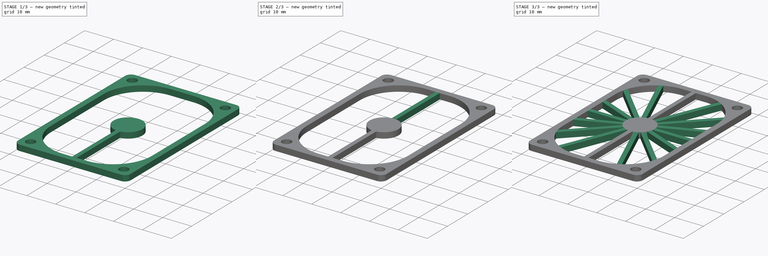
[diagram: build sequence overview — one tinted view per stage of 3, left to right]
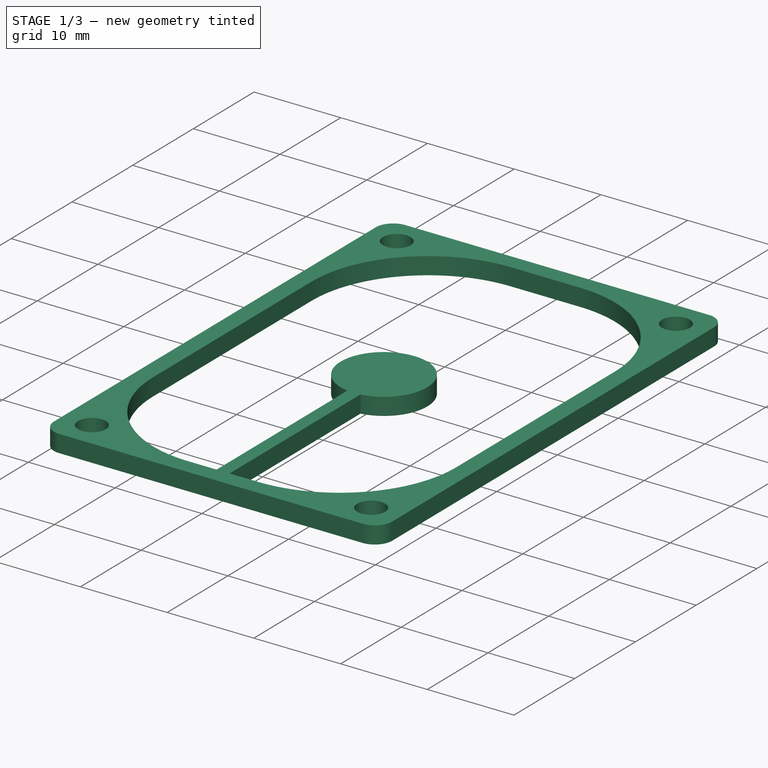
[diagram: stage 1 of 3 — iso view after this stage's code; geometry added in this stage tinted green]
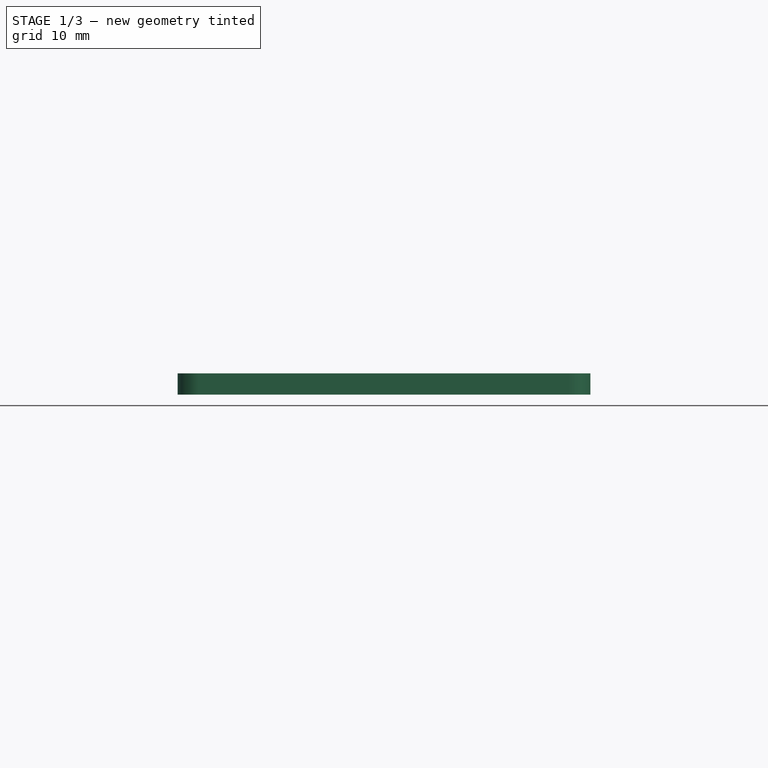
[diagram: stage 1 of 3 — front view after this stage's code; geometry added in this stage tinted green]
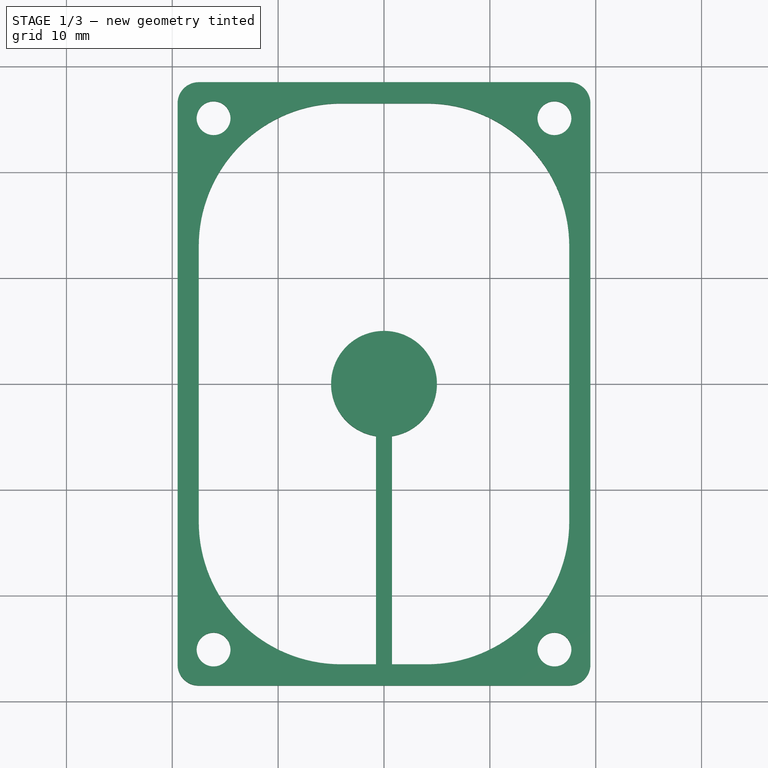
[diagram: stage 1 of 3 — top view after this stage's code; geometry added in this stage tinted green]
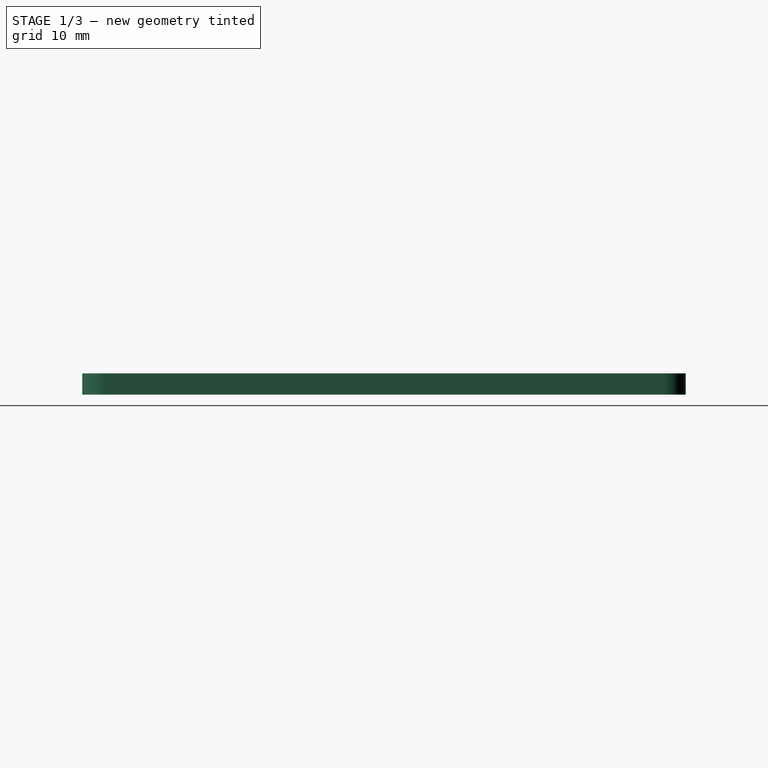
[diagram: stage 1 of 3 — right view after this stage's code; geometry added in this stage tinted green]
FCSTD DOCUMENT  (FreeCAD 0.18.3R)
Label: Laser PCB Box Lid
License: All rights reserved
LicenseURL: http://en.wikipedia.org/wiki/All_rights_reserved
objects: Sketcher::SketchObject×4, PartDesign::Pad×3, PartDesign::PolarPattern×1, PartDesign::Pocket×1, PartDesign::Body×1, Spreadsheet::Sheet×1
note: 14 computed .brp shape members not serialized (recipe doc carries the construction recipe); baked Part::Feature solids carry a one-line shape summary decoded from their .brp

FEATURE [Sketcher::SketchObject] Sketch  label="Sketch Frame"
  MapMode = 5
  Support = -> [XY_Plane]
  expr: Constraints[67] = Screws.m3d
  expr: Constraints[58] = Screws.m3D
  sketch-geometry (30):
    g0: ArcOfCircle CenterX=-17.5 CenterY=26.5 CenterZ=0 NormalX=0 NormalY=0 NormalZ=1 AngleXU=0 Radius=2 StartAngle=1.5708 EndAngle=3.14159
    g1: ArcOfCircle CenterX=17.5 CenterY=26.5 CenterZ=0 NormalX=0 NormalY=0 NormalZ=1 AngleXU=0 Radius=2 StartAngle=0 EndAngle=1.5708
    g2: ArcOfCircle CenterX=17.5 CenterY=-26.5 CenterZ=0 NormalX=0 NormalY=0 NormalZ=1 AngleXU=0 Radius=2 StartAngle=4.71239 EndAngle=6.28319
    g3: LineSegment StartX=17.5 StartY=-28.5 StartZ=0 EndX=-17.5 EndY=-28.5 EndZ=0
    g4: LineSegment StartX=-19.5 StartY=-26.5 StartZ=0 EndX=-19.5 EndY=26.5 EndZ=0
    g5: LineSegment StartX=-17.5 StartY=28.5 StartZ=0 EndX=17.5 EndY=28.5 EndZ=0
    g6: LineSegment StartX=19.5 StartY=26.5 StartZ=0 EndX=19.5 EndY=-26.5 EndZ=0
    g7: LineSegment StartX=-4.02893 StartY=26.5 StartZ=0 EndX=4.02893 EndY=26.5 EndZ=0
    g8: LineSegment StartX=17.5 StartY=13.0289 StartZ=0 EndX=17.5 EndY=-13.0289 EndZ=0
    g9: ArcOfCircle CenterX=-4.02893 CenterY=13.0289 CenterZ=0 NormalX=0 NormalY=0 NormalZ=1 AngleXU=0 Radius=13.4711 StartAngle=1.5708 EndAngle=3.14159
    g10: ArcOfCircle CenterX=4.02893 CenterY=13.0289 CenterZ=0 NormalX=0 NormalY=0 NormalZ=1 AngleXU=0 Radius=13.4711 StartAngle=1e-16 EndAngle=1.5708
    g11: ArcOfCircle CenterX=-4.02893 CenterY=-13.0289 CenterZ=0 NormalX=0 NormalY=0 NormalZ=1 AngleXU=0 Radius=13.4711 StartAngle=3.14159 EndAngle=4.71239
    g12: ArcOfCircle CenterX=4.02893 CenterY=-13.0289 CenterZ=0 NormalX=0 NormalY=0 NormalZ=1 AngleXU=0 Radius=13.4711 StartAngle=4.71239 EndAngle=6.28319
    g13: LineSegment [constr] StartX=4.02893 StartY=26.5 StartZ=0 EndX=4.02893 EndY=28.5 EndZ=0
    g14: LineSegment [constr] StartX=17.5 StartY=13.0289 StartZ=0 EndX=19.5 EndY=13.0289 EndZ=0
    g15: LineSegment [constr] StartX=-4.02893 StartY=-26.5 StartZ=0 EndX=-4.02893 EndY=-28.5 EndZ=0
    g16: LineSegment StartX=-4.02893 StartY=-26.5 StartZ=0 EndX=4.02893 EndY=-26.5 EndZ=0
    g17: LineSegment StartX=-17.5 StartY=13.0289 StartZ=0 EndX=-17.5 EndY=-13.0289 EndZ=0
    g18: ArcOfCircle CenterX=-17.5 CenterY=-26.5 CenterZ=0 NormalX=0 NormalY=0 NormalZ=1 AngleXU=0 Radius=2 StartAngle=3.14159 EndAngle=4.71239
    g19: LineSegment [constr] StartX=-17.5 StartY=13.0289 StartZ=0 EndX=-19.5 EndY=13.0289 EndZ=0
    g20: LineSegment [constr] StartX=-4.02893 StartY=26.5 StartZ=0 EndX=-4.02893 EndY=28.5 EndZ=0
    g21: LineSegment [constr] StartX=-4.02893 StartY=13.0289 StartZ=0 EndX=4.02893 EndY=-13.0289 EndZ=0
    g22: LineSegment [constr] StartX=4.02893 StartY=13.0289 StartZ=0 EndX=-4.02893 EndY=-13.0289 EndZ=0
    g23: Circle CenterX=-16.1 CenterY=25.1 CenterZ=0 NormalX=0 NormalY=0 NormalZ=1 AngleXU=0 Radius=1.6
    g24: Circle CenterX=16.1 CenterY=-25.1 CenterZ=0 NormalX=0 NormalY=0 NormalZ=1 AngleXU=0 Radius=1.6
    g25: LineSegment [constr] StartX=-14.9686 StartY=23.9686 StartZ=0 EndX=-13.5544 EndY=22.5544 EndZ=0
    g26: Circle [constr] CenterX=-16.1 CenterY=25.1 CenterZ=0 NormalX=0 NormalY=0 NormalZ=1 AngleXU=0 Radius=1.4
    g27: Circle [constr] CenterX=16.1 CenterY=-25.1 CenterZ=0 NormalX=0 NormalY=0 NormalZ=1 AngleXU=0 Radius=1.4
    g28: Circle CenterX=16.1 CenterY=25.1 CenterZ=0 NormalX=0 NormalY=0 NormalZ=1 AngleXU=0 Radius=1.6
    g29: Circle CenterX=-16.1 CenterY=-25.1 CenterZ=0 NormalX=0 NormalY=0 NormalZ=1 AngleXU=0 Radius=1.6
  constraints (79):
    c: Horizontal(g3)
    c: Vertical(g4)
    c: Horizontal(g5)
    c: Vertical(g6)
    c: Radius(g2) = 2
    c: Equal(g0,g1)
    c: Vertical(g8)
    c: Horizontal(g7)
    c: Coincident(g11,g15) = -1.5708
    c: Tangent(g12,g8) = 1.5708
    c: Tangent(g10,g8) = 1.5708
    c: Tangent(g10,g7) = 1.5708
    c: Tangent(g9,g7) = 1.5708
    c: Equal(g9,g10)
    c: Equal(g10,g11)
    c: Equal(g11,g12)
    c: Coincident(g13,g7)
    c: PointOnObject(g13,g5)
    c: Vertical(g13)
    c: Coincident(g14,g8)
    c: PointOnObject(g14,g6)
    c: Horizontal(g14)
    c: PointOnObject(g15,g3)
    c: Vertical(g15)
    c: Equal(g15,g13)
    c: Equal(g13,g14)
    c: Vertical(g17)
    c: Equal(g2,g18)
    c: Equal(g18,g0)
    c: Horizontal(g16)
    c: Tangent(g18,g4) = 1.5708
    c: Tangent(g18,g3) = 1.5708
    c: Tangent(g16,g11) = -1.5708
    c: Tangent(g6,g2) = 1.5708
    c: Tangent(g3,g2) = 1.5708
    c: Tangent(g17,g9) = -1.5708
    c: Tangent(g4,g0) = 1.5708
    c: Tangent(g5,g0) = 1.5708
    c: Tangent(g5,g1) = 1.5708
    c: Tangent(g6,g1) = 1.5708
    c: Coincident(g19,g9)
    c: PointOnObject(g19,g4)
    c: Coincident(g20,g7)
    c: Vertical(g20)
    c: Horizontal(g19)
    c: Equal(g19,g20)
    c: Equal(g20,g14)
    c: Tangent(g17,g11) = -1.5708
    c: Tangent(g16,g12) = -1.5708
    c: Coincident(g21,g9)
    c: Coincident(g21,g12)
    c: Coincident(g22,g10)
    c: Coincident(g22,g11)
    c: PointOnObject(g-1,g22)
    c: PointOnObject(g-1,g21)
    c: Distance(g15) = 2
    c: Distance(g18,g2) = 35
    c: Distance(g0,g18) = 53
    c: Diameter(g23) = 3.2
    c: PointOnObject(g25,g23)
    c: PointOnObject(g25,g9)
    c: PointOnObject(g23,g25)
    c: PointOnObject(g9,g25)
    c: Distance(g25) = 2
    c: Equal(g24,g23)
    c: Tangent(g26,g7)
    c: Tangent(g26,g17)
    c: Diameter(g26) = 2.8
    c: Coincident(g23,g26)
    c: Tangent(g27,g16)
    c: Tangent(g27,g8)
    c: Equal(g27,g26)
    c: Coincident(g24,g27)
    c: Equal(g29,g28)
    c: Equal(g28,g23)
    c: Horizontal(g23,g28)
    c: Vertical(g28,g24)
    c: Horizontal(g29,g24)
    c: Vertical(g29,g23)
FEATURE [PartDesign::Pad] Pad  label="Frame"
  Length = 2
  Length2 = 100
  Profile = -> Sketch
  Type = 0
FEATURE [Sketcher::SketchObject] Sketch001  label="Sketch Center"
  ExternalGeometry = -> [Pad]
  MapMode = 5
  Support = -> [XY_Plane]
  sketch-geometry (4):
    g0: ArcOfCircle CenterX=0 CenterY=0 CenterZ=0 NormalX=0 NormalY=0 NormalZ=1 AngleXU=0 Radius=5 StartAngle=4.86296 EndAngle=10.845
    g1: LineSegment StartX=-0.75 StartY=-4.94343 StartZ=0 EndX=-0.75 EndY=-26.5 EndZ=0
    g2: LineSegment StartX=0.75 StartY=-4.94343 StartZ=0 EndX=0.75 EndY=-26.5 EndZ=0
    g3: LineSegment StartX=-0.75 StartY=-26.5 StartZ=0 EndX=0.75 EndY=-26.5 EndZ=0
  constraints (12):
    c: Coincident(g0,g-1)
    c: Coincident(g1,g0)
    c: Vertical(g1)
    c: Coincident(g2,g0)
    c: Vertical(g2)
    c: Coincident(g3,g1)
    c: Coincident(g3,g2)
    c: Horizontal(g0,g0)
    c: Distance(g0,g2) = 1.5
    c: Diameter(g0) = 10
    c: PointOnObject(g1,g-3)
    c: PointOnObject(g2,g-3)
FEATURE [PartDesign::Pad] Pad001  label="Center"
  BaseFeature = -> Pad
  Length = 2
  Length2 = 100
  Profile = -> Sketch001
  Type = 0
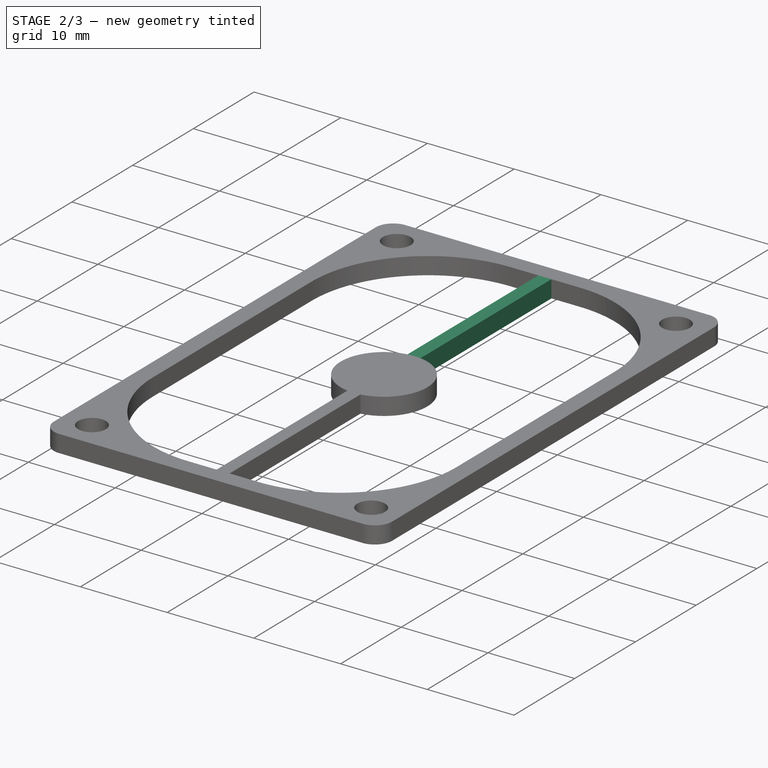
[diagram: stage 2 of 3 — iso view after this stage's code; geometry added in this stage tinted green]
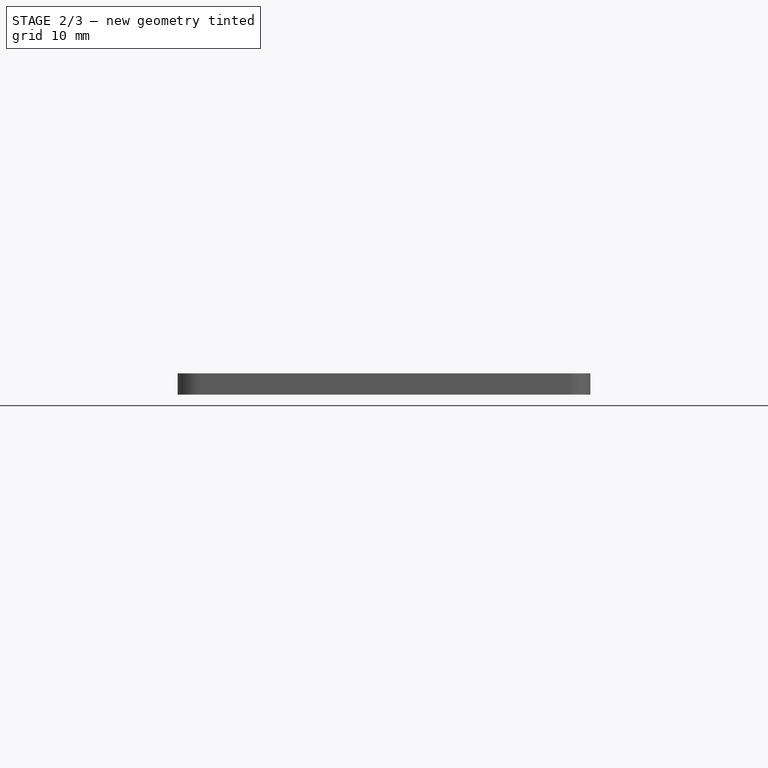
[diagram: stage 2 of 3 — front view after this stage's code; geometry added in this stage tinted green]
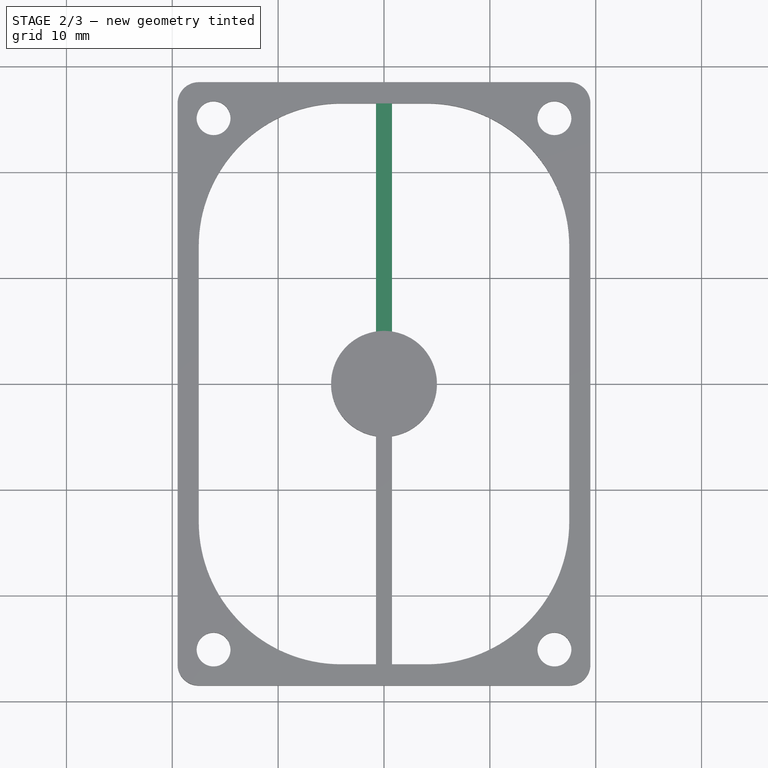
[diagram: stage 2 of 3 — top view after this stage's code; geometry added in this stage tinted green]
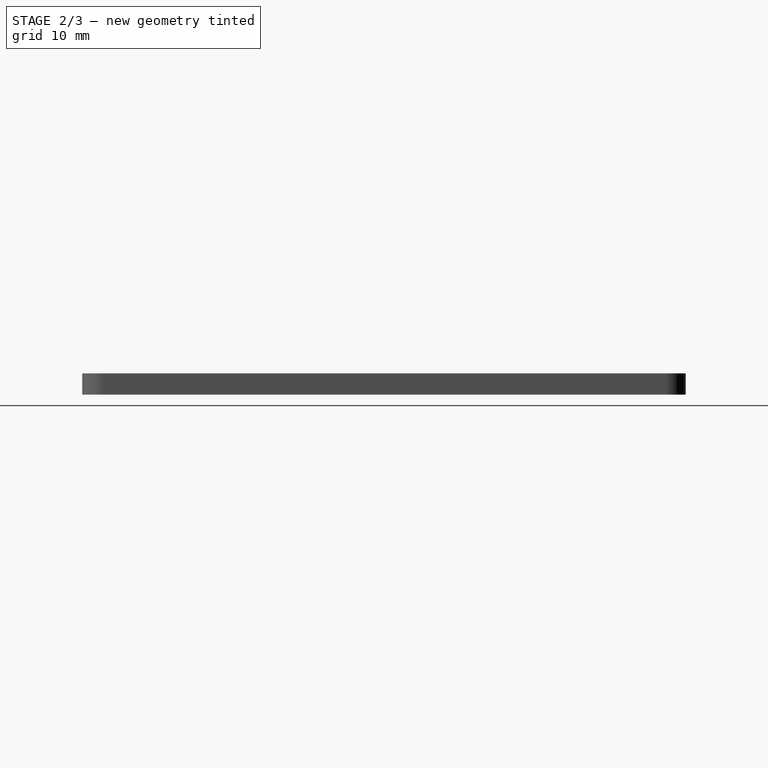
[diagram: stage 2 of 3 — right view after this stage's code; geometry added in this stage tinted green]
FEATURE [Sketcher::SketchObject] Sketch002  label="Sketch Spoke"
  ExternalGeometry = -> [Pad001]
  MapMode = 5
  Support = -> [XY_Plane]
  sketch-geometry (4):
    g0: ArcOfCircle CenterX=0 CenterY=0 CenterZ=0 NormalX=0 NormalY=0 NormalZ=1 AngleXU=0 Radius=5 StartAngle=1.42023 EndAngle=1.72136
    g1: LineSegment StartX=-0.75 StartY=4.94343 StartZ=0 EndX=-0.75 EndY=28.5 EndZ=0
    g2: LineSegment StartX=0.75 StartY=4.94343 StartZ=0 EndX=0.75 EndY=28.5 EndZ=0
    g3: LineSegment StartX=-0.75 StartY=28.5 StartZ=0 EndX=0.75 EndY=28.5 EndZ=0
  constraints (12):
    c: Coincident(g0,g-1)
    c: Coincident(g1,g0)
    c: Vertical(g1)
    c: Coincident(g2,g0)
    c: Vertical(g2)
    c: Coincident(g3,g1)
    c: Coincident(g3,g2)
    c: Horizontal(g0,g0)
    c: PointOnObject(g1,g-4)
    c: PointOnObject(g2,g-4)
    c: Distance(g3) = 1.5
    c: PointOnObject(g0,g-6)
FEATURE [PartDesign::Pad] Pad002  label="Spoke"
  BaseFeature = -> Pad001
  Length = 2
  Length2 = 100
  Profile = -> Sketch002
  Type = 0
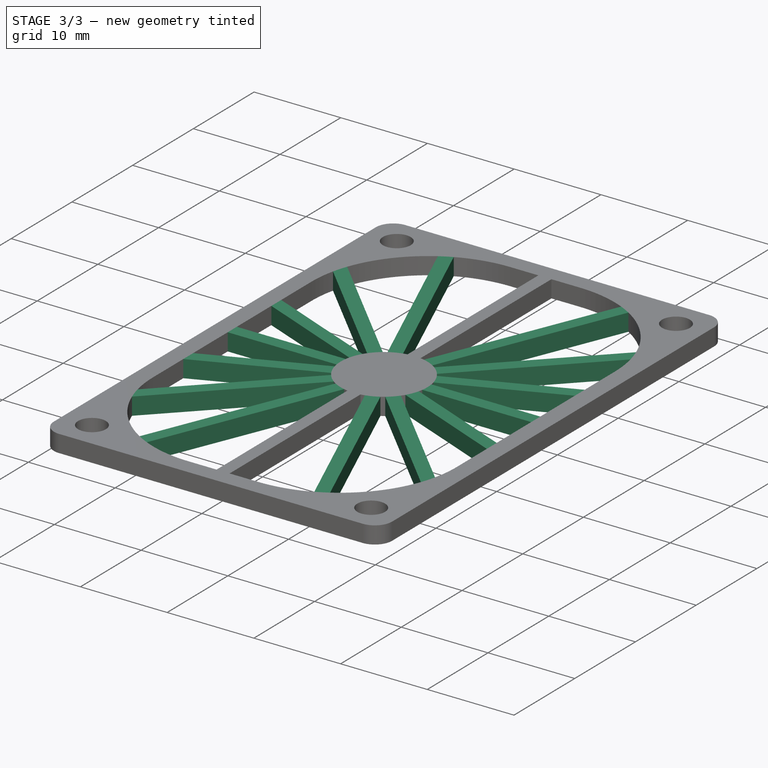
[diagram: stage 3 of 3 — iso view after this stage's code; geometry added in this stage tinted green]
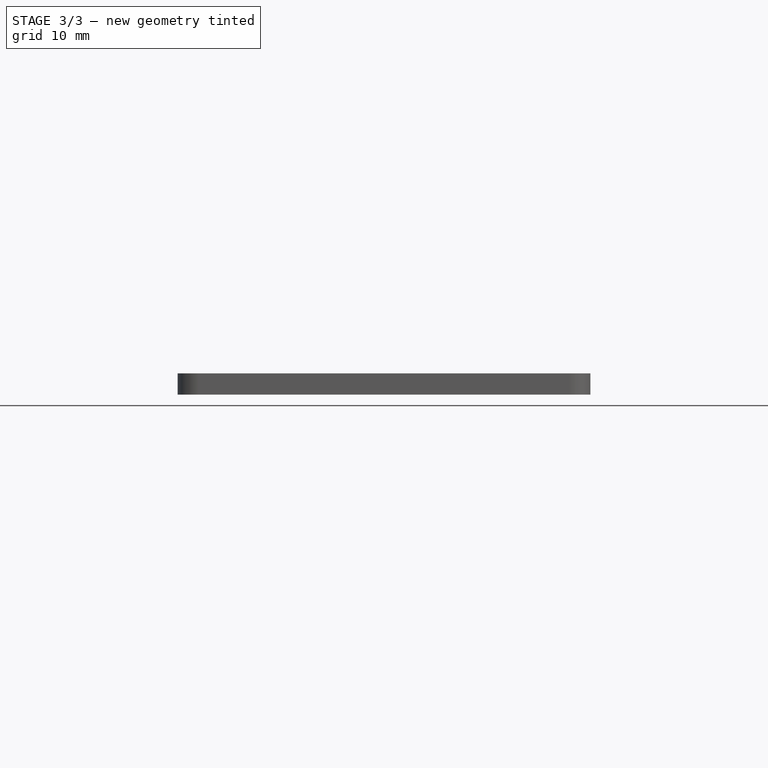
[diagram: stage 3 of 3 — front view after this stage's code; geometry added in this stage tinted green]
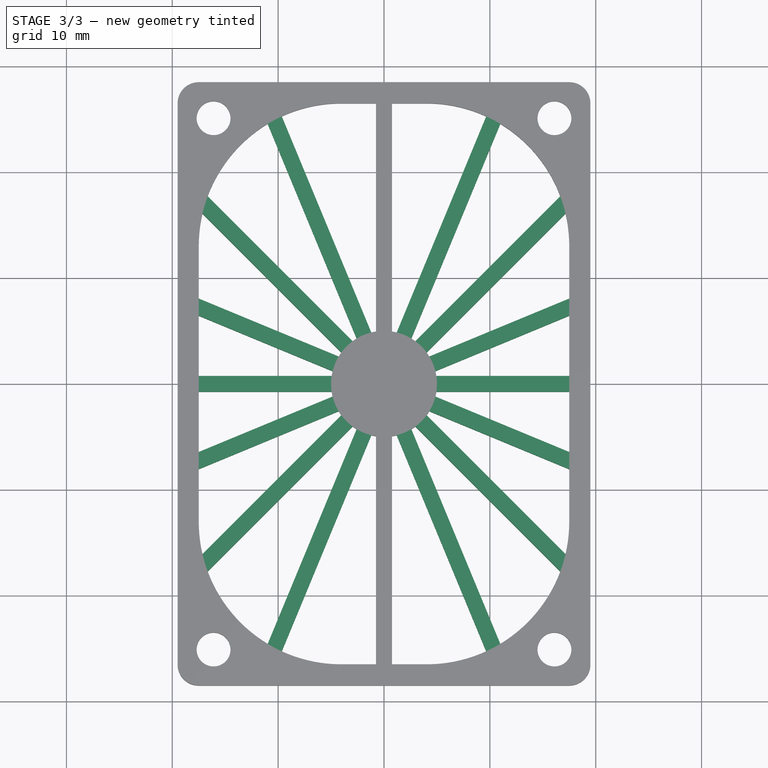
[diagram: stage 3 of 3 — top view after this stage's code; geometry added in this stage tinted green]
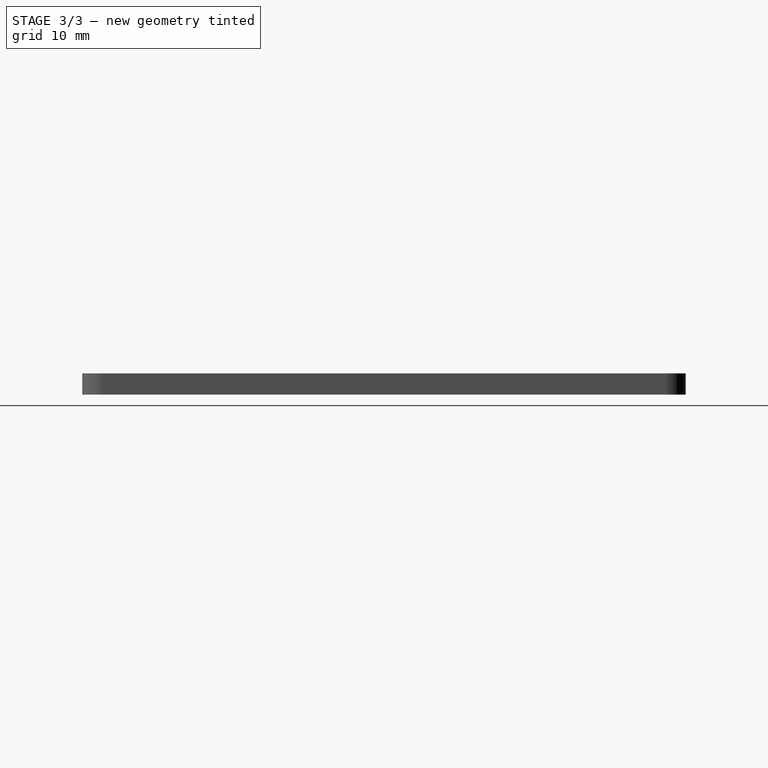
[diagram: stage 3 of 3 — right view after this stage's code; geometry added in this stage tinted green]
FEATURE [PartDesign::PolarPattern] PolarPattern  label="PolarPattern Spokes"
  Angle = 360
  Axis = -> Sketch002 [N_Axis]
  BaseFeature = -> Pad002
  Occurrences = 16
  Originals = -> [Pad002]
FEATURE [Sketcher::SketchObject] Sketch003  label="Sketch Outer Cut"
  ExternalGeometry = -> [PolarPattern]
  MapMode = 5
  Placement = pos=(0,0,2) rot=(0,0,1;0rad)
  Support = -> [PolarPattern]
  sketch-geometry (8):
    g0: LineSegment StartX=-19.5 StartY=-26.5 StartZ=0 EndX=-28.5 EndY=-26.5 EndZ=0
    g1: LineSegment StartX=-28.5 StartY=-26.5 StartZ=0 EndX=-28.5 EndY=26.5 EndZ=0
    g2: LineSegment StartX=-28.5 StartY=26.5 StartZ=0 EndX=-19.5 EndY=26.5 EndZ=0
    g3: LineSegment StartX=-19.5 StartY=26.5 StartZ=0 EndX=-19.5 EndY=-26.5 EndZ=0
    g4: LineSegment StartX=19.5 StartY=-26.5 StartZ=0 EndX=28.5 EndY=-26.5 EndZ=0
    g5: LineSegment StartX=28.5 StartY=-26.5 StartZ=0 EndX=28.5 EndY=26.5 EndZ=0
    g6: LineSegment StartX=28.5 StartY=26.5 StartZ=0 EndX=19.5 EndY=26.5 EndZ=0
    g7: LineSegment StartX=19.5 StartY=26.5 StartZ=0 EndX=19.5 EndY=-26.5 EndZ=0
  constraints (20):
    c: Coincident(g0,g1)
    c: Coincident(g1,g2)
    c: Coincident(g2,g3)
    c: Coincident(g3,g0)
    c: Horizontal(g0)
    c: Horizontal(g2)
    c: Vertical(g1)
    c: Coincident(g4,g5)
    c: Coincident(g5,g6)
    c: Coincident(g6,g7)
    c: Coincident(g7,g4)
    c: Horizontal(g4)
    c: Horizontal(g6)
    c: Vertical(g5)
    c: Coincident(g2,g-7)
    c: Coincident(g0,g-8)
    c: Coincident(g6,g-5)
    c: Coincident(g4,g-9)
    c: PointOnObject(g-4,g5)
    c: Equal(g6,g2)
FEATURE [PartDesign::Pocket] Pocket  label="Outer Cut"
  BaseFeature = -> PolarPattern
  Length = 5
  Length2 = 100
  Profile = -> Sketch003
  Type = 1
FEATURE [PartDesign::Body] Body  label="Laser PCB Box Lid"
  Group = -> [Sketch,Pad,Sketch001,Pad001,Sketch002,Pad002,PolarPattern,Sketch003,Pocket]
  Origin = -> Origin
  Tip = -> Pocket
FEATURE [Spreadsheet::Sheet] Spreadsheet  label="Screws"
  cells = A1=Screw Type; B1=Length; D1=Diameter Loose; F1=Diameter Tight; A2=M3 Tapping; B2=m3tl; C2(m3tl)==12mm; D2=m3tD; E2(m3tD)==3.4mm; F2=m3td; G2(m3td)==2.8mm; A3=M3; B3=m3l; C3(m3l)==30mm; D3=m3D; E3(m3D)==3.2mm; F3=m3d; G3(m3d)==2.8mm
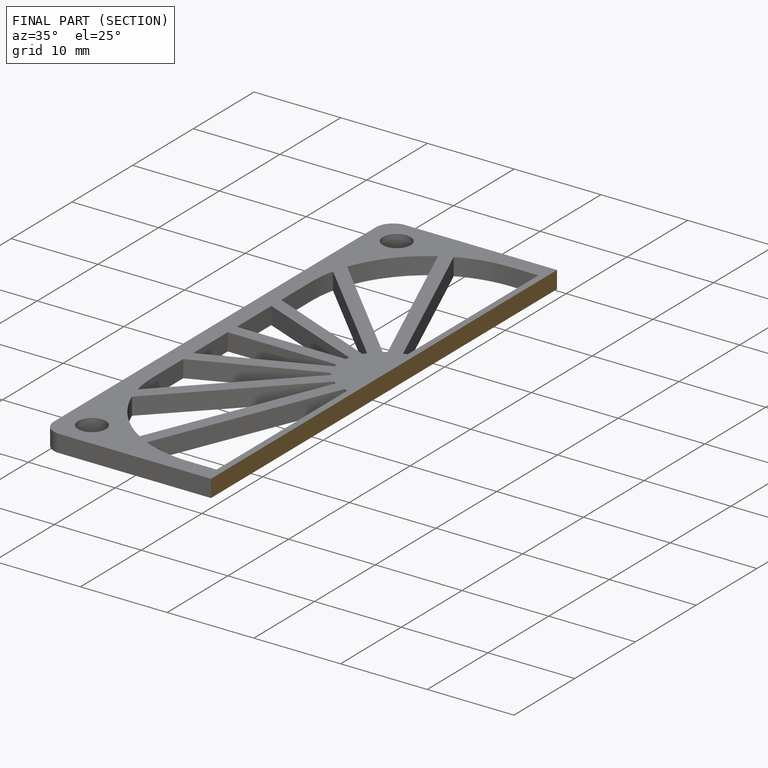
[diagram: finished part — half-section view (interior)]
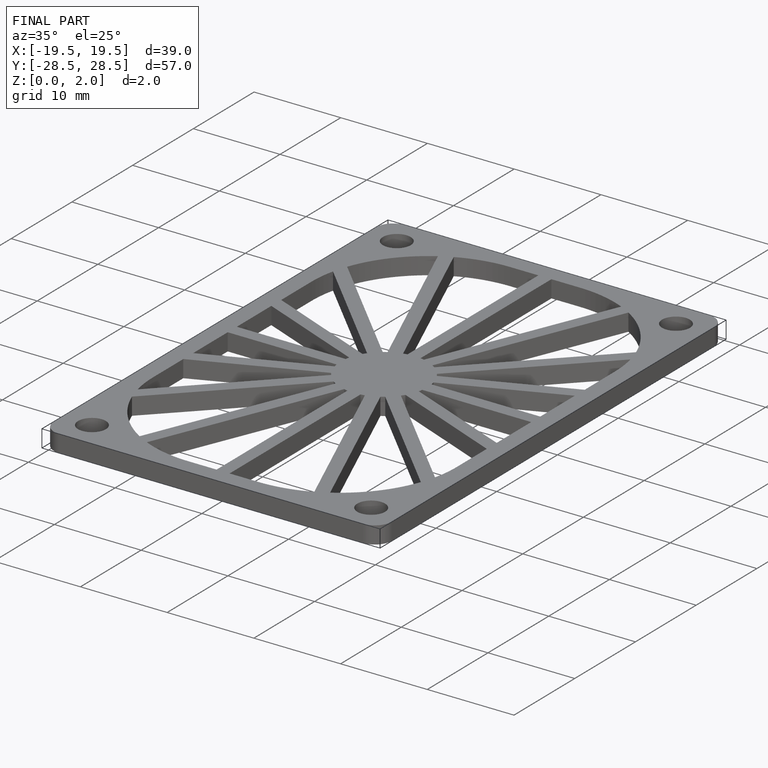
[diagram: finished part — iso view with bounding-box wireframe]
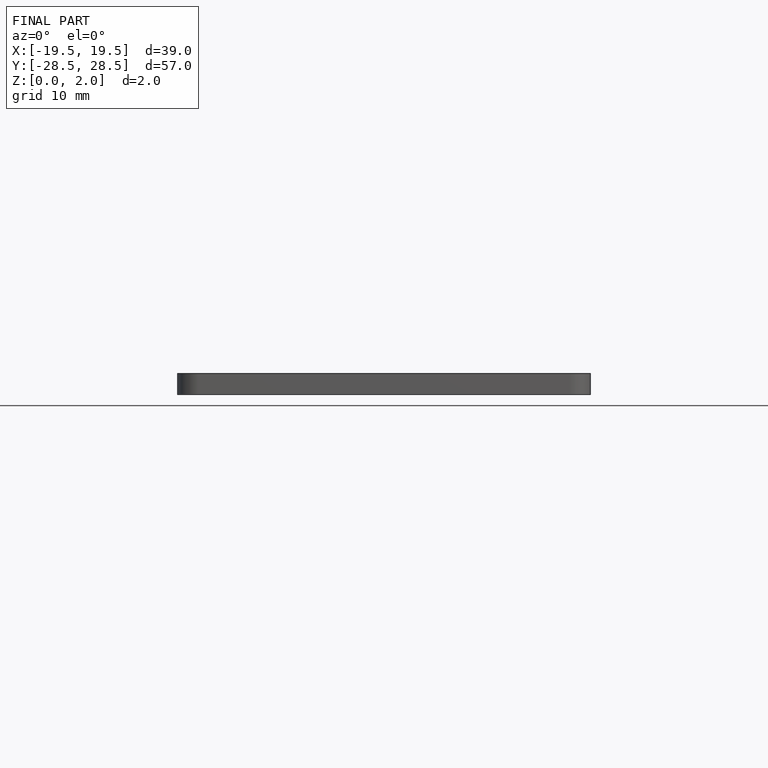
[diagram: finished part — front view with bounding-box wireframe]
